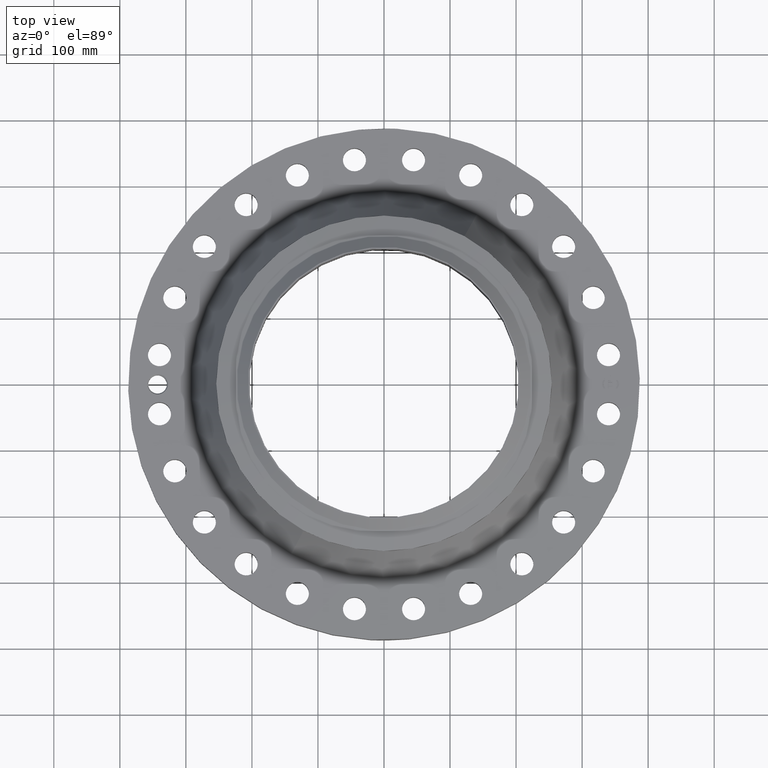
[diagram: clean part render]
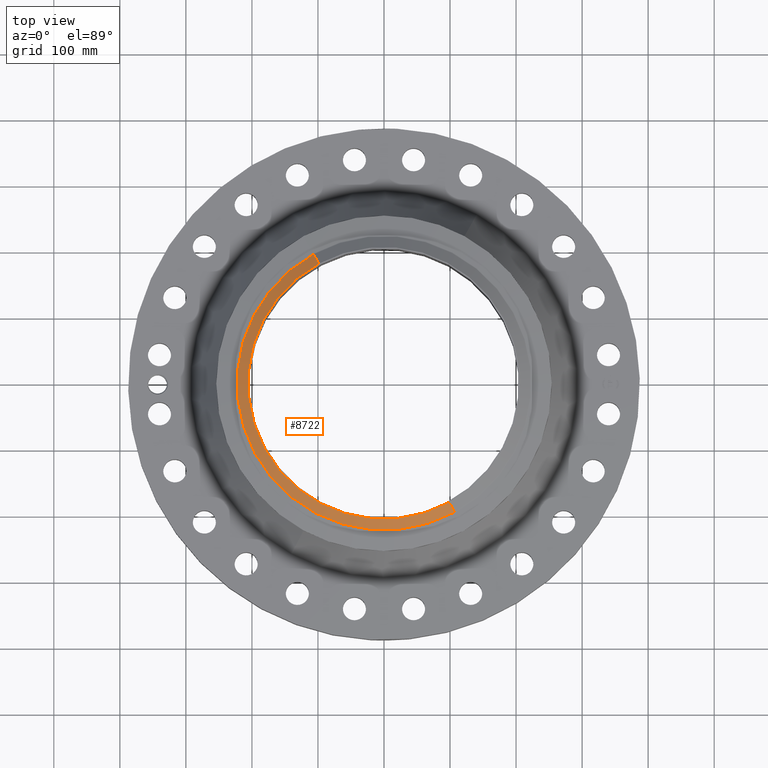
[diagram: same view with one face highlighted and labeled with its STEP entity id]
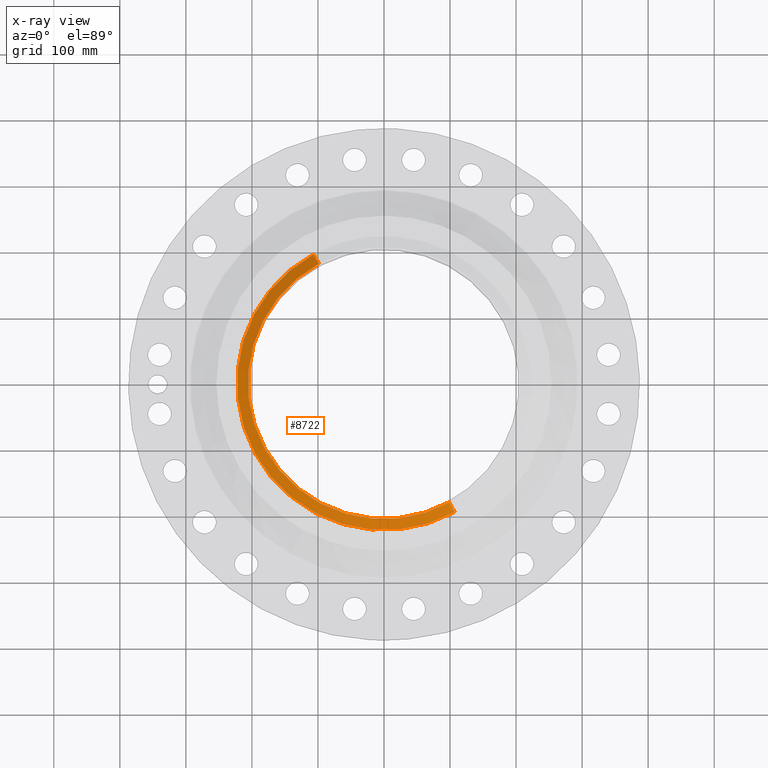
[diagram: x-ray of the same camera — body ghosted, the highlighted face saturated]
A machine part, top view. The second image highlights one B-rep face of the part: STEP entity #8722.
The next image is the same camera in x-ray: the body ghosted, the highlighted face saturated — about 0% of this face is hidden behind the body in this view.
In plain terms, the highlighted conical surface has half-angle 52.5 deg.
Its self-contained STEP definition (entity closure, byte-faithful):
#5168=AXIS2_PLACEMENT_3D('Circle Axis2P3D',#5166,#5167,$) ;
#8695=AXIS2_PLACEMENT_3D('Cone Axis2P3D',#8692,#8693,#8694) ;
#8706=AXIS2_PLACEMENT_3D('Circle Axis2P3D',#8704,#8705,$) ;
#5161=CARTESIAN_POINT('Vertex',(3.88801654296,-7.11696654369,6.44000000003)) ;
#5163=CARTESIAN_POINT('Vertex',(-3.88801654296,7.11696654369,6.44000000003)) ;
#5166=CARTESIAN_POINT('Axis2P3D Location',(0.,0.,6.44000000003)) ;
#8692=CARTESIAN_POINT('Axis2P3D Location',(0.,0.,6.44000000003)) ;
#8697=CARTESIAN_POINT('Line Origine',(-4.04295784551,7.4005846956,6.19201437259)) ;
#8701=CARTESIAN_POINT('Vertex',(-4.19789914806,7.6842028475,5.94402874516)) ;
#8704=CARTESIAN_POINT('Axis2P3D Location',(0.,0.,5.94402874516)) ;
#8708=CARTESIAN_POINT('Vertex',(4.19789914806,-7.6842028475,5.94402874516)) ;
#8711=CARTESIAN_POINT('Line Origine',(4.04295784551,-7.4005846956,6.19201437259)) ;
#5167=DIRECTION('Axis2P3D Direction',(0.,0.,-0.0393700787402)) ;
#8693=DIRECTION('Axis2P3D Direction',(-0.,-0.,-0.0393700787402)) ;
#8694=DIRECTION('Axis2P3D XDirection',(-0.0188750212049,0.0345504945626,0.)) ;
#8698=DIRECTION('Vector Direction',(-0.014974561121,0.02741075027,-0.023966985394)) ;
#8705=DIRECTION('Axis2P3D Direction',(0.,0.,-0.0393700787402)) ;
#8712=DIRECTION('Vector Direction',(0.014974561121,-0.02741075027,-0.023966985394)) ;
#8699=VECTOR('Line Direction',#8698,0.0393700787402) ;
#8713=VECTOR('Line Direction',#8712,0.0393700787402) ;
#8717=ORIENTED_EDGE('',*,*,#5170,.F.) ;
#8718=ORIENTED_EDGE('',*,*,#8703,.T.) ;
#8719=ORIENTED_EDGE('',*,*,#8710,.T.) ;
#8720=ORIENTED_EDGE('',*,*,#8715,.F.) ;
#8722=ADVANCED_FACE('PartBody',(#8721),#8696,.T.) ;
#5169=CIRCLE('generated circle',#5168,8.10974015751) ;
#8707=CIRCLE('generated circle',#8706,8.75610248106) ;
#8696=CONICAL_SURFACE('Cone',#8695,8.10974015751,0.916297857297) ;
#5170=EDGE_CURVE('',#5164,#5162,#5169,.F.) ;
#8703=EDGE_CURVE('',#5164,#8702,#8700,.T.) ;
#8710=EDGE_CURVE('',#8702,#8709,#8707,.F.) ;
#8715=EDGE_CURVE('',#5162,#8709,#8714,.T.) ;
#8716=EDGE_LOOP('',(#8717,#8718,#8719,#8720)) ;
#8721=FACE_OUTER_BOUND('',#8716,.T.) ;
#8700=LINE('Line',#8697,#8699) ;
#8714=LINE('Line',#8711,#8713) ;
#5162=VERTEX_POINT('',#5161) ;
#5164=VERTEX_POINT('',#5163) ;
#8702=VERTEX_POINT('',#8701) ;
#8709=VERTEX_POINT('',#8708) ;